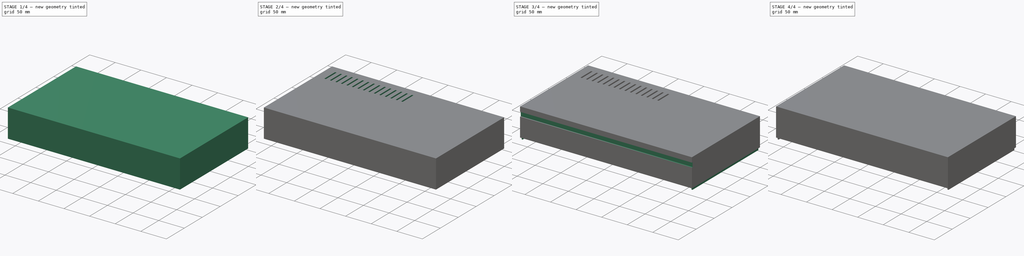
[diagram: build sequence overview — one tinted view per stage of 4, left to right]
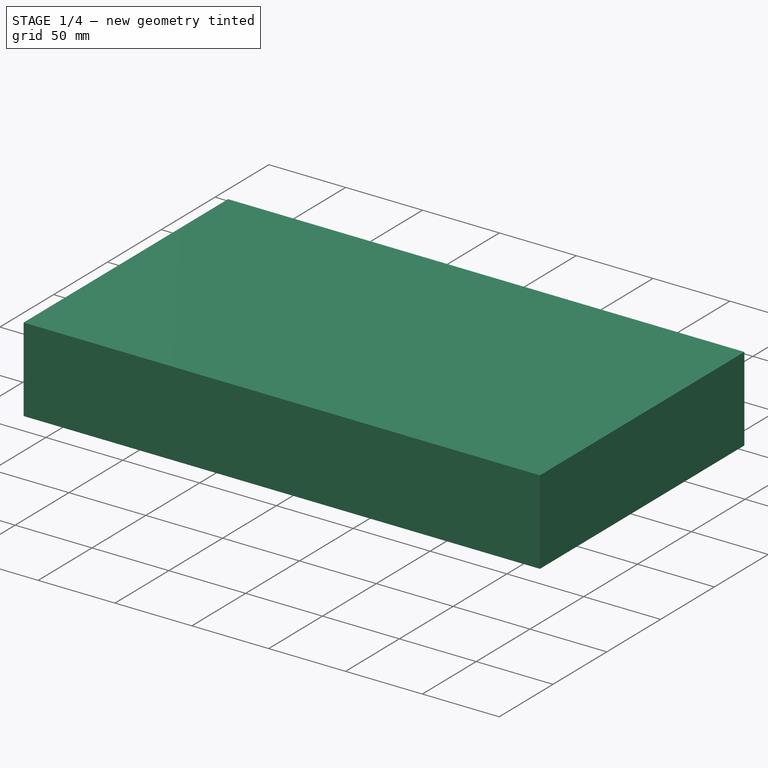
[diagram: stage 1 of 4 — iso view after this stage's code; geometry added in this stage tinted green]
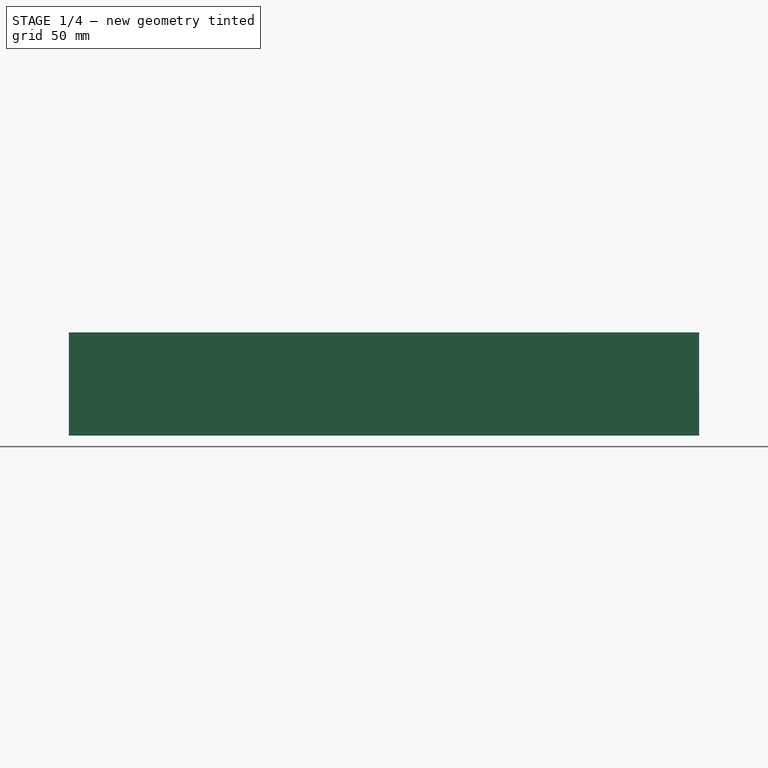
[diagram: stage 1 of 4 — front view after this stage's code; geometry added in this stage tinted green]
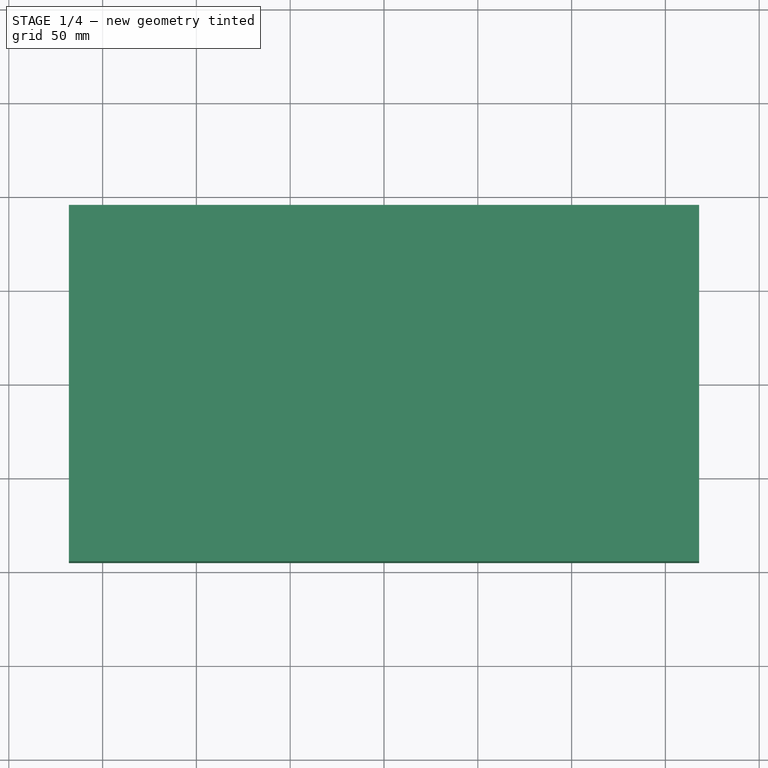
[diagram: stage 1 of 4 — top view after this stage's code; geometry added in this stage tinted green]
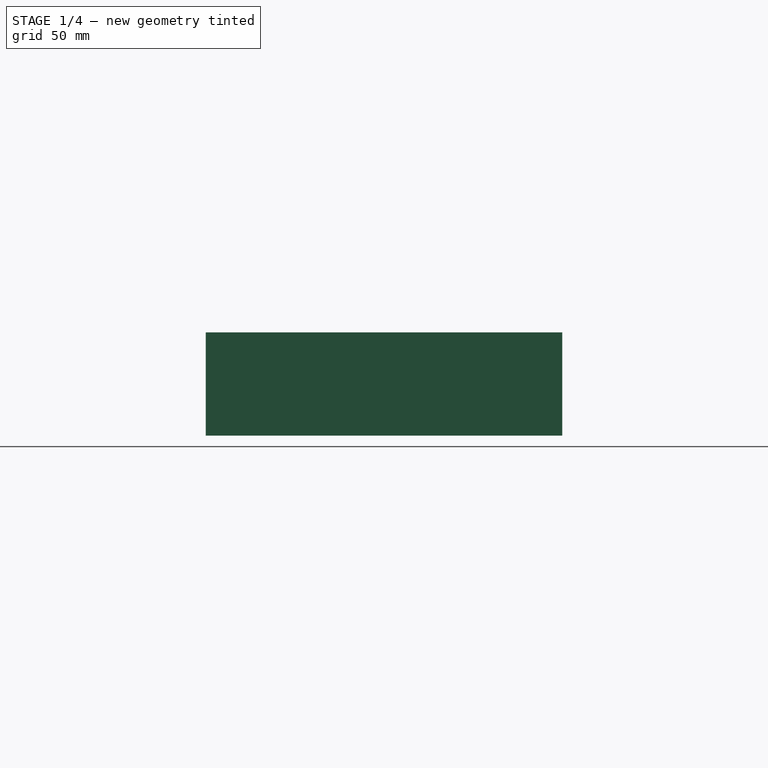
[diagram: stage 1 of 4 — right view after this stage's code; geometry added in this stage tinted green]
FCSTD DOCUMENT  (FreeCAD 0.21R33771 (Git))
Label: CaseTop
License: All rights reserved
LicenseURL: https://en.wikipedia.org/wiki/All_rights_reserved
objects: Sketcher::SketchObject×6, PartDesign::Pocket×3, PartDesign::Pad×2, PartDesign::Thickness×2, PartDesign::LinearPattern×1, PartDesign::Mirrored×1, PartDesign::Body×1
note: 23 computed .brp shape members not serialized (recipe doc carries the construction recipe); baked Part::Feature solids carry a one-line shape summary decoded from their .brp

FEATURE [Sketcher::SketchObject] Sketch
  FullyConstrained = true
  MapMode = 5
  Support = -> [XY_Plane]
  sketch-geometry (5):
    g0: LineSegment StartX=-168 StartY=95 StartZ=0 EndX=-168 EndY=-95 EndZ=0
    g1: LineSegment StartX=-168 StartY=-95 StartZ=0 EndX=168 EndY=-95 EndZ=0
    g2: LineSegment StartX=168 StartY=-95 StartZ=0 EndX=168 EndY=95 EndZ=0
    g3: LineSegment StartX=168 StartY=95 StartZ=0 EndX=-168 EndY=95 EndZ=0
    g4: GeomPoint X=0 Y=0 Z=0
  constraints (12):
    c: Coincident(g0,g1)
    c: Coincident(g1,g2)
    c: Coincident(g2,g3)
    c: Coincident(g3,g0)
    c: Horizontal(g1)
    c: Horizontal(g3)
    c: Vertical(g0)
    c: Vertical(g2)
    c: Symmetric(g1,g0,g4)
    c: Coincident(g4,g-1)
    c: DistanceX(g3,g3) = 336
    c: DistanceY(g0,g0) = 190
FEATURE [PartDesign::Pad] Pad
  Direction = (0,0,1)
  Length = 55
  Length2 = 10
  Profile = -> Sketch
  ReferenceAxis = -> Sketch [N_Axis]
  Refine = true
  Reversed = true
  Type = 0
FEATURE [PartDesign::Thickness] Thickness001
  Base = -> Pad [Face6]
  BaseFeature = -> Pad
  Intersection = false
  Join = 0
  Mode = 0
  Refine = true
  Reversed = true
  SupportTransform = false
  Value = 3
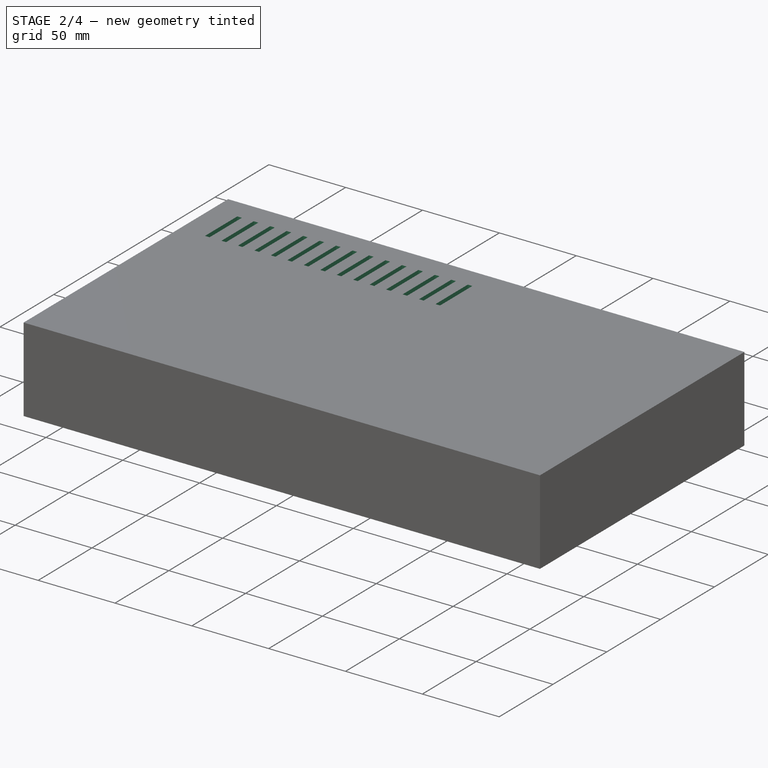
[diagram: stage 2 of 4 — iso view after this stage's code; geometry added in this stage tinted green]
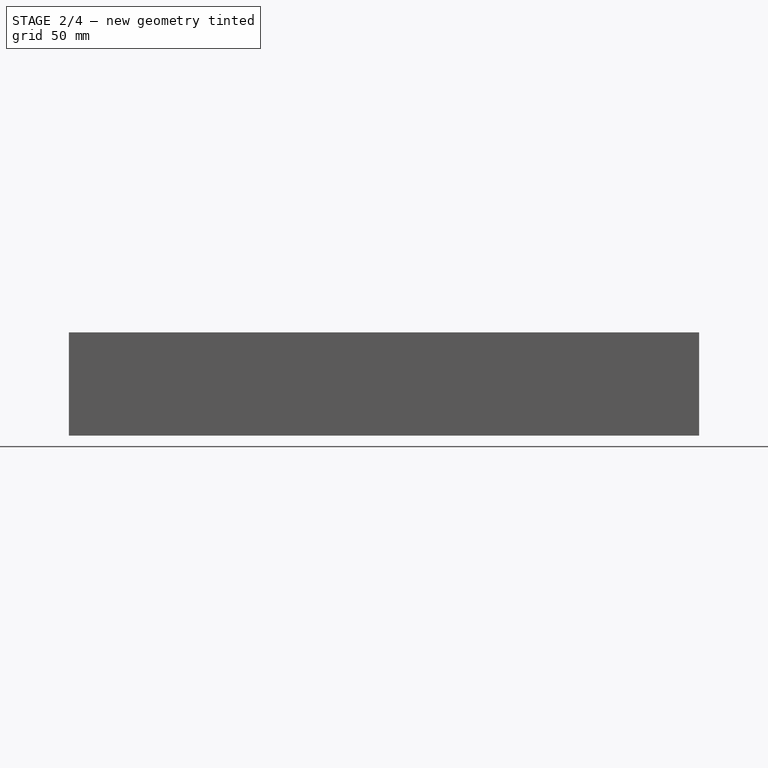
[diagram: stage 2 of 4 — front view after this stage's code; geometry added in this stage tinted green]
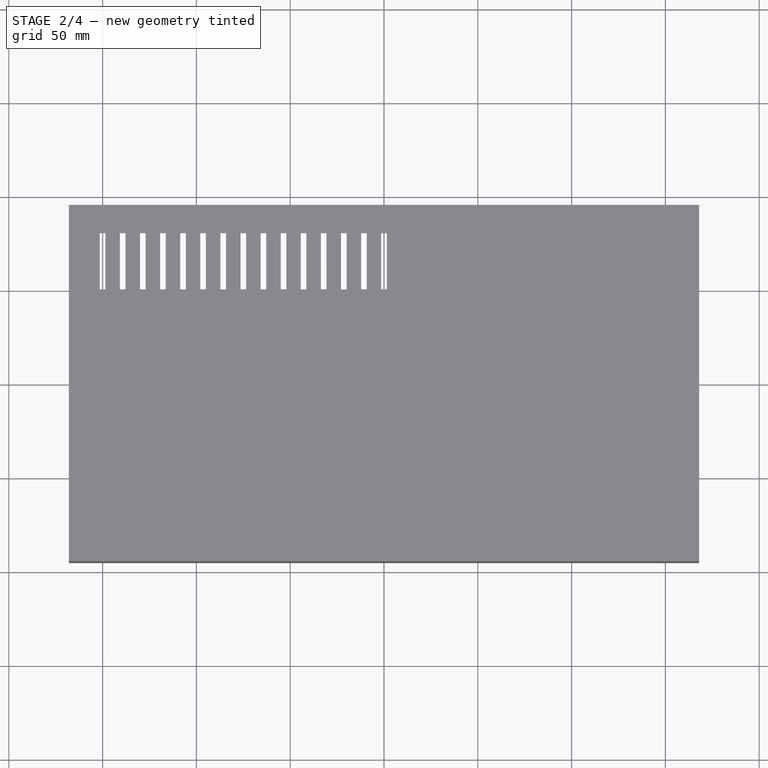
[diagram: stage 2 of 4 — top view after this stage's code; geometry added in this stage tinted green]
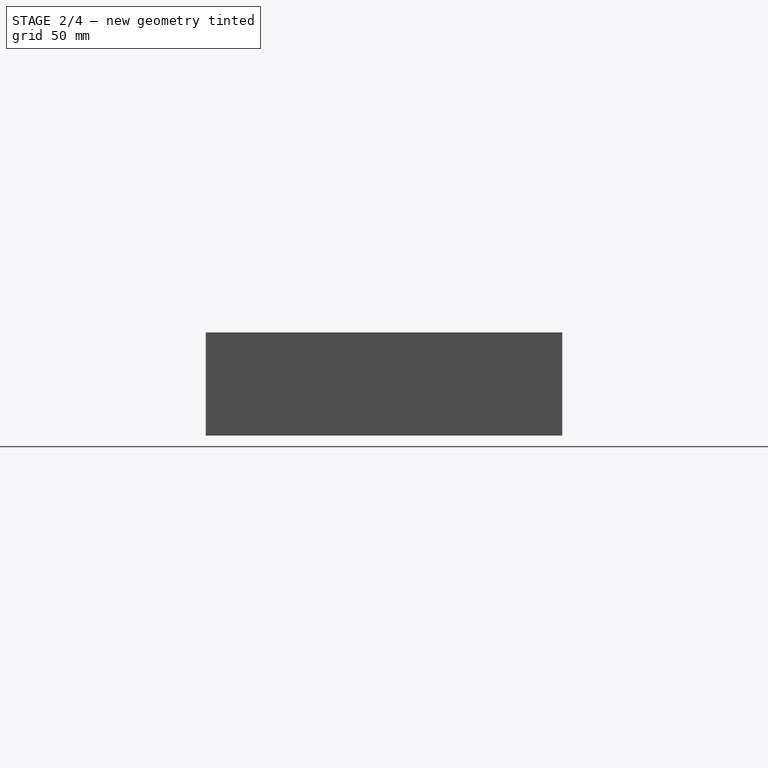
[diagram: stage 2 of 4 — right view after this stage's code; geometry added in this stage tinted green]
FEATURE [Sketcher::SketchObject] Sketch001
  FullyConstrained = true
  MapMode = 5
  Support = -> [Thickness001]
  sketch-geometry (4):
    g0: LineSegment StartX=-1.5 StartY=80 StartZ=0 EndX=1.5 EndY=80 EndZ=0
    g1: LineSegment StartX=1.5 StartY=80 StartZ=0 EndX=1.5 EndY=50 EndZ=0
    g2: LineSegment StartX=1.5 StartY=50 StartZ=0 EndX=-1.5 EndY=50 EndZ=0
    g3: LineSegment StartX=-1.5 StartY=50 StartZ=0 EndX=-1.5 EndY=80 EndZ=0
  constraints (11):
    c: Coincident(g0,g1)
    c: Coincident(g2,g3)
    c: Horizontal(g0)
    c: Vertical(g1)
    c: Vertical(g3)
    c: Symmetric(g2,g1,g-2)
    c: Coincident(g0,g3)
    c: DistanceY(g1,g1) = 30
    c: Coincident(g1,g2)
    c: DistanceX(g0,g0) = 3
    c: Block(g3)
FEATURE [PartDesign::Pocket] Pocket
  BaseFeature = -> Thickness001
  Direction = (0,0,-1)
  Length = 5
  Length2 = 5
  Profile = -> Sketch001
  ReferenceAxis = -> Sketch001 [N_Axis]
  Refine = true
  Type = 0
FEATURE [PartDesign::LinearPattern] LinearPattern
  BaseFeature = -> Pocket
  Direction = -> X_Axis
  Length = 150
  Occurrences = 15
  Originals = -> [Pocket]
  Refine = true
  Reversed = true
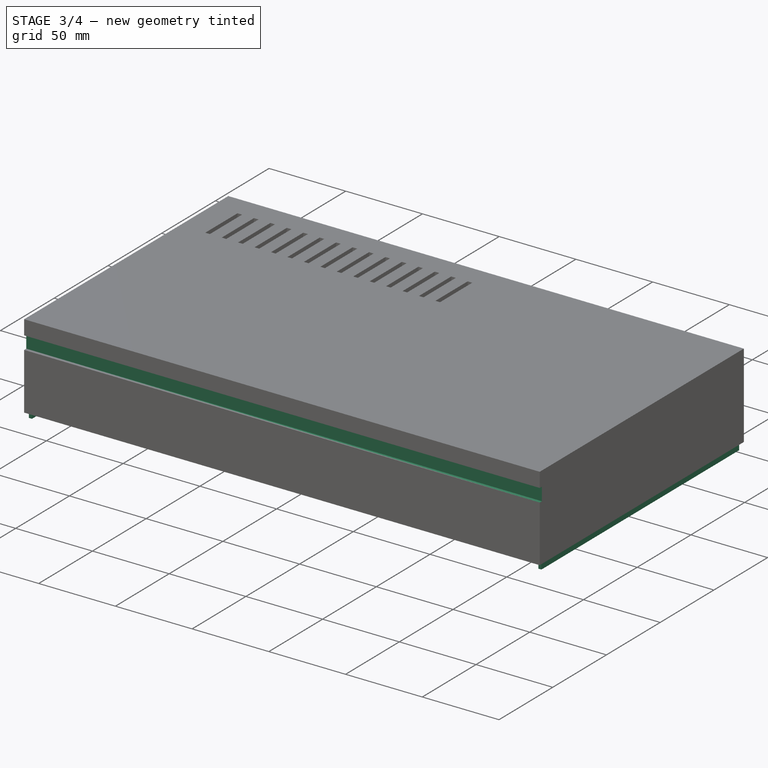
[diagram: stage 3 of 4 — iso view after this stage's code; geometry added in this stage tinted green]
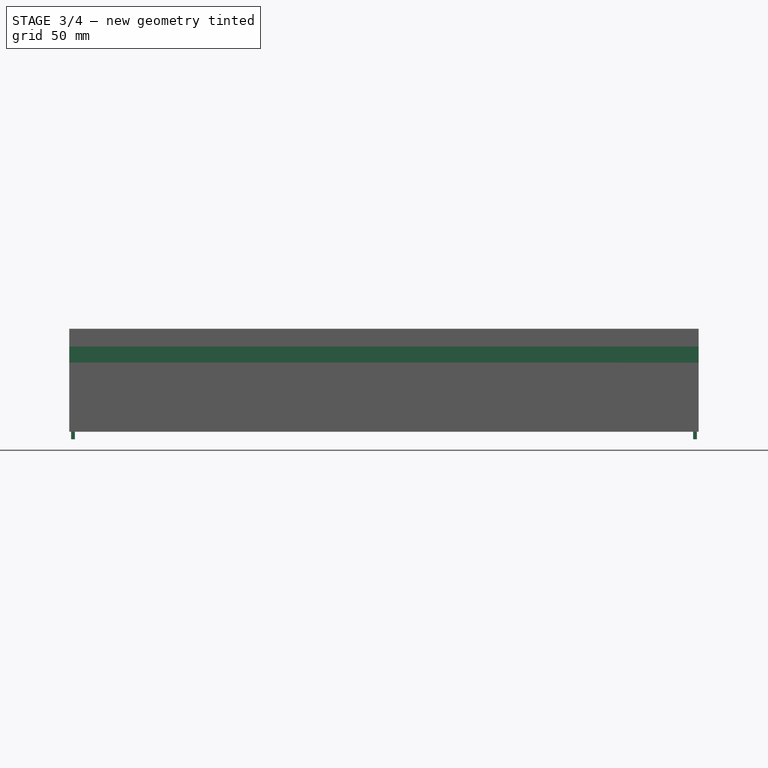
[diagram: stage 3 of 4 — front view after this stage's code; geometry added in this stage tinted green]
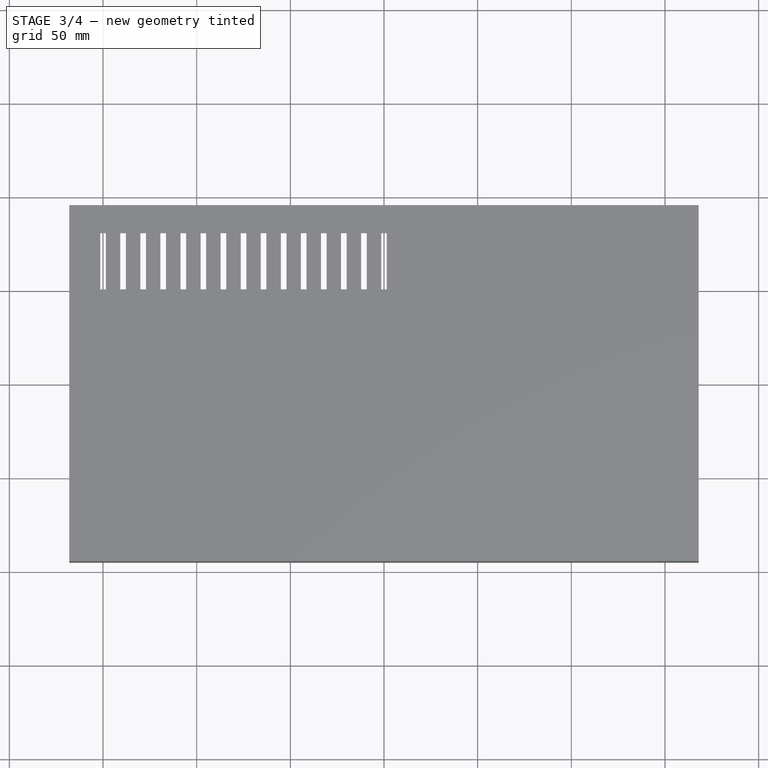
[diagram: stage 3 of 4 — top view after this stage's code; geometry added in this stage tinted green]
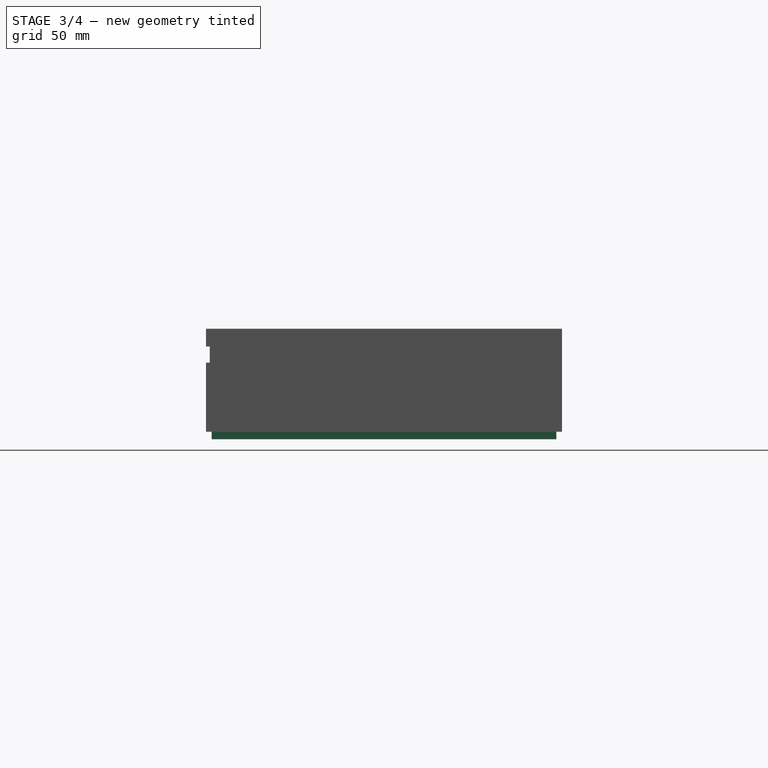
[diagram: stage 3 of 4 — right view after this stage's code; geometry added in this stage tinted green]
FEATURE [Sketcher::SketchObject] Sketch002
  ExternalGeometry = -> [LinearPattern]
  FullyConstrained = true
  MapMode = 5
  Placement = pos=(0,0,-55) rot=(1,0,0;3.14159rad)
  Support = -> [LinearPattern]
  sketch-geometry (4):
    g0: LineSegment StartX=165 StartY=92 StartZ=0 EndX=167 EndY=92 EndZ=0
    g1: LineSegment StartX=167 StartY=92 StartZ=0 EndX=167 EndY=-92 EndZ=0
    g2: LineSegment StartX=167 StartY=-92 StartZ=0 EndX=165 EndY=-92 EndZ=0
    g3: LineSegment StartX=165 StartY=-92 StartZ=0 EndX=165 EndY=92 EndZ=0
  constraints (10):
    c: Coincident(g0,g1)
    c: Coincident(g1,g2)
    c: Coincident(g2,g3)
    c: Coincident(g3,g0)
    c: Horizontal(g0)
    c: Horizontal(g2)
    c: Vertical(g1)
    c: Coincident(g0,g-3)
    c: Coincident(g2,g-3)
    c: DistanceX(g2,g2) = 2
FEATURE [PartDesign::Pad] Pad001
  BaseFeature = -> LinearPattern
  Direction = (0,0,-1)
  Length = 4
  Length2 = 10
  Profile = -> Sketch002
  ReferenceAxis = -> Sketch002 [N_Axis]
  Refine = true
  Type = 0
FEATURE [PartDesign::Mirrored] Mirrored
  BaseFeature = -> Pad001
  MirrorPlane = -> YZ_Plane
  Originals = -> [Pad001]
  Refine = true
FEATURE [Sketcher::SketchObject] Sketch004
  ExternalGeometry = -> [Mirrored]
  FullyConstrained = true
  MapMode = 5
  Placement = pos=(0,-95,0) rot=(1,0,0;1.5708rad)
  Support = -> [Mirrored]
  sketch-geometry (9):
    g0: LineSegment StartX=61.5 StartY=-5.4 StartZ=0 EndX=61.5 EndY=-30.8 EndZ=0
    g1: LineSegment StartX=61.5 StartY=-30.8 StartZ=0 EndX=162.5 EndY=-30.8 EndZ=0
    g2: LineSegment StartX=162.5 StartY=-30.8 StartZ=0 EndX=162.5 EndY=-5.4 EndZ=0
    g3: LineSegment StartX=162.5 StartY=-5.4 StartZ=0 EndX=61.5 EndY=-5.4 EndZ=0
    g4: GeomPoint X=112 Y=-18.1 Z=0
    g5: LineSegment StartX=48.5 StartY=-5.39998 StartZ=0 EndX=-52.5 EndY=-5.39998 EndZ=0
    g6: LineSegment StartX=-52.5 StartY=-5.39998 StartZ=0 EndX=-52.5 EndY=-30.8 EndZ=0
    g7: LineSegment StartX=-52.5 StartY=-30.8 StartZ=0 EndX=48.5 EndY=-30.8 EndZ=0
    g8: LineSegment StartX=48.5 StartY=-30.8 StartZ=0 EndX=48.5 EndY=-5.39998 EndZ=0
  constraints (26):
    c: Coincident(g0,g1)
    c: Coincident(g1,g2)
    c: Coincident(g2,g3)
    c: Coincident(g3,g0)
    c: Horizontal(g1)
    c: Horizontal(g3)
    c: Vertical(g0)
    c: Vertical(g2)
    c: Symmetric(g1,g0,g4)
    c: DistanceX(g4,g-3) = 56
    c: DistanceX(g3,g3) = 101
    c: DistanceY(g0,g0) = 25.4
    c: Block(g3)
    c: DistanceY(g4,g-3) = 18.1
    c: Coincident(g6,g7)
    c: Coincident(g7,g8)
    c: Coincident(g8,g5)
    c: Coincident(g5,g6)
    c: Horizontal(g7)
    c: Horizontal(g5)
    c: Vertical(g6)
    c: Vertical(g8)
    c: Equal(g3,g5) = 101
    c: Equal(g0,g6) = 25.4
    c: Block(g5)
    c: DistanceX(g7,g1) = 114
FEATURE [Sketcher::SketchObject] Sketch005
  ExternalGeometry = -> [Sketch004]
  FullyConstrained = true
  MapMode = 5
  Placement = pos=(0,-95,0) rot=(1,0,0;1.5708rad)
  Support = -> [Mirrored]
  sketch-geometry (17):
    g0: LineSegment StartX=66.7 StartY=-11.5 StartZ=0 EndX=66.7 EndY=-16.1 EndZ=0
    g1: LineSegment StartX=157.3 StartY=-16.1 StartZ=0 EndX=157.3 EndY=-11.5 EndZ=0
    g2: GeomPoint X=112 Y=-13.8 Z=0
    g3: LineSegment StartX=61.5 StartY=-30.8 StartZ=0 EndX=162.5 EndY=-5.4 EndZ=0
    g4: LineSegment StartX=162.5 StartY=-30.8 StartZ=0 EndX=112 EndY=-18.1 EndZ=0
    g5: LineSegment StartX=112 StartY=-18.1 StartZ=0 EndX=61.5 EndY=-5.4 EndZ=0
    g6: LineSegment StartX=112 StartY=-54.1686 StartZ=0 EndX=112 EndY=9.99973 EndZ=0
    g7: LineSegment StartX=92 StartY=-11.5 StartZ=0 EndX=66.7 EndY=-11.5 EndZ=0
    g8: LineSegment StartX=157.3 StartY=-11.5 StartZ=0 EndX=132 EndY=-11.5 EndZ=0
    g9: LineSegment StartX=132 StartY=-11.5 StartZ=0 EndX=132 EndY=-10 EndZ=0
    g10: LineSegment StartX=132 StartY=-10 StartZ=0 EndX=92 EndY=-10 EndZ=0
    g11: LineSegment StartX=92 StartY=-10 StartZ=0 EndX=92 EndY=-11.5 EndZ=0
    g12: LineSegment StartX=66.7 StartY=-16.1 StartZ=0 EndX=92 EndY=-16.1 EndZ=0
    g13: LineSegment StartX=92 StartY=-16.1 StartZ=0 EndX=92 EndY=-17 EndZ=0
    g14: LineSegment StartX=92 StartY=-17 StartZ=0 EndX=132 EndY=-17 EndZ=0
    g15: LineSegment StartX=132 StartY=-17 StartZ=0 EndX=132 EndY=-16.1 EndZ=0
    g16: LineSegment StartX=132 StartY=-16.1 StartZ=0 EndX=157.3 EndY=-16.1 EndZ=0
  constraints (41):
    c: Coincident(g0,g12)
    c: Coincident(g16,g1)
    c: Coincident(g1,g8)
    c: Coincident(g7,g0)
    c: Vertical(g0)
    c: Vertical(g1)
    c: Symmetric(g16,g0,g2)
    c: DistanceY(g1,g1) = 4.6
    c: DistanceX(g7,g8) = 90.6
    c: DistanceY(g-5,g2) = 17
    c: Coincident(g3,g-6)
    c: Coincident(g3,g-5)
    c: Coincident(g4,g-5)
    c: Coincident(g5,g-6)
    c: Coincident(g4,g5)
    c: Block(g4)
    c: Block(g3)
    c: Block(g6)
    c: Symmetric(g0,g1,g6)
    c: Coincident(g11,g7)
    c: Horizontal(g7)
    c: Coincident(g9,g10)
    c: Coincident(g8,g9)
    c: Horizontal(g8)
    c: Coincident(g10,g11)
    c: Symmetric(g10,g9,g6)
    c: Parallel(g9,g11)
    c: Parallel(g11,g6)
    c: DistanceX(g10,g10) = 40
    c: Coincident(g12,g13)
    c: Coincident(g13,g14)
    c: Coincident(g14,g15)
    c: Coincident(g15,g16)
    c: Parallel(g13,g6)
    c: Parallel(g15,g6)
    c: Equal(g14,g10)
    c: Symmetric(g13,g14,g6)
    c: Block(g16)
    c: Block(g12)
    c: Block(g10)
    c: Block(g14)
FEATURE [Sketcher::SketchObject] Sketch006
  ExternalGeometry = -> [Mirrored,Sketch005]
  FullyConstrained = true
  MapMode = 5
  Placement = pos=(0,-95,0) rot=(1,0,0;1.5708rad)
  Support = -> [Mirrored]
  sketch-geometry (4):
    g0: LineSegment StartX=-168 StartY=-18.1 StartZ=0 EndX=168 EndY=-18.1 EndZ=0
    g1: LineSegment StartX=-168 StartY=-9.5 StartZ=0 EndX=168 EndY=-9.5 EndZ=0
    g2: LineSegment StartX=168 StartY=-9.5 StartZ=0 EndX=168 EndY=-18.1 EndZ=0
    g3: LineSegment StartX=-168 StartY=-9.5 StartZ=0 EndX=-168 EndY=-18.1 EndZ=0
  constraints (12):
    c: Horizontal(g0)
    c: Horizontal(g1)
    c: PointOnObject(g0,g-6)
    c: PointOnObject(g1,g-6)
    c: PointOnObject(g0,g-3)
    c: PointOnObject(g1,g-3)
    c: Coincident(g2,g1)
    c: Coincident(g2,g0)
    c: Coincident(g3,g1)
    c: Coincident(g3,g0)
    c: DistanceY(g0,g-7) = 2
    c: DistanceY(g-7,g1) = 2
FEATURE [PartDesign::Pocket] Pocket001
  BaseFeature = -> Mirrored
  Direction = (0,1,-2e-16)
  Length = 2
  Length2 = 5
  Profile = -> Sketch006
  ReferenceAxis = -> Sketch006 [N_Axis]
  Refine = true
  Type = 0
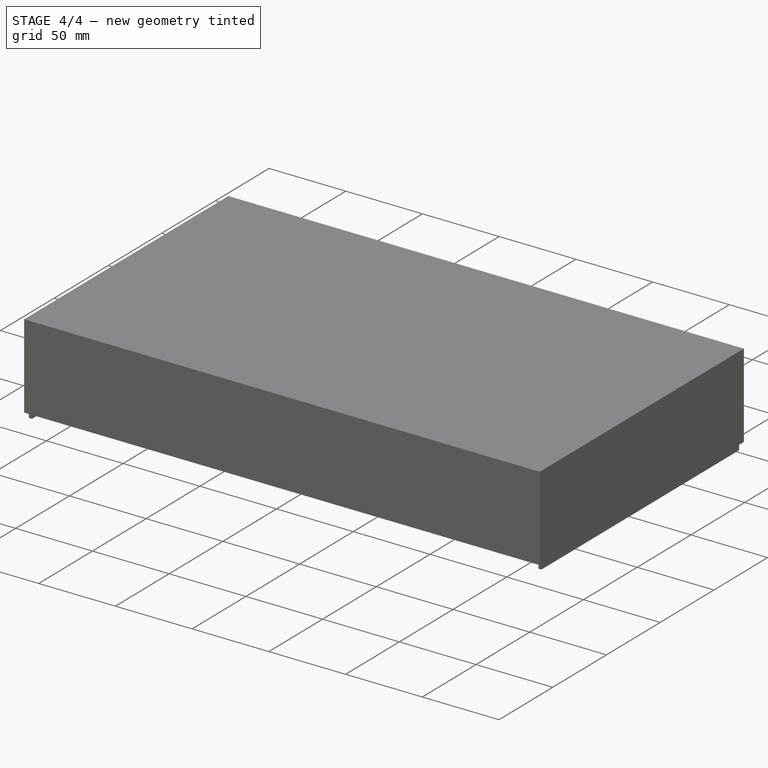
[diagram: stage 4 of 4 — iso view after this stage's code; geometry added in this stage tinted green]
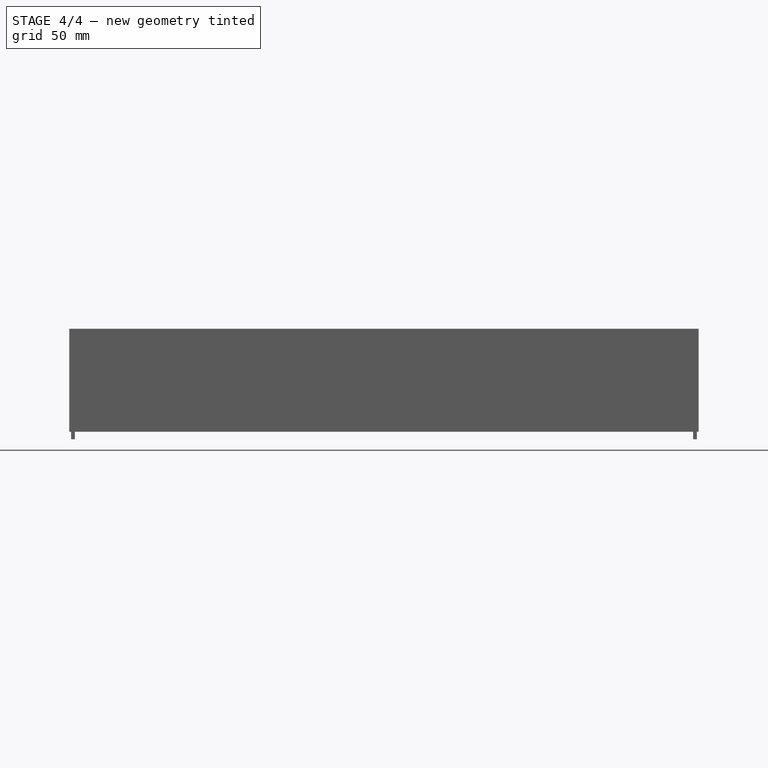
[diagram: stage 4 of 4 — front view after this stage's code; geometry added in this stage tinted green]
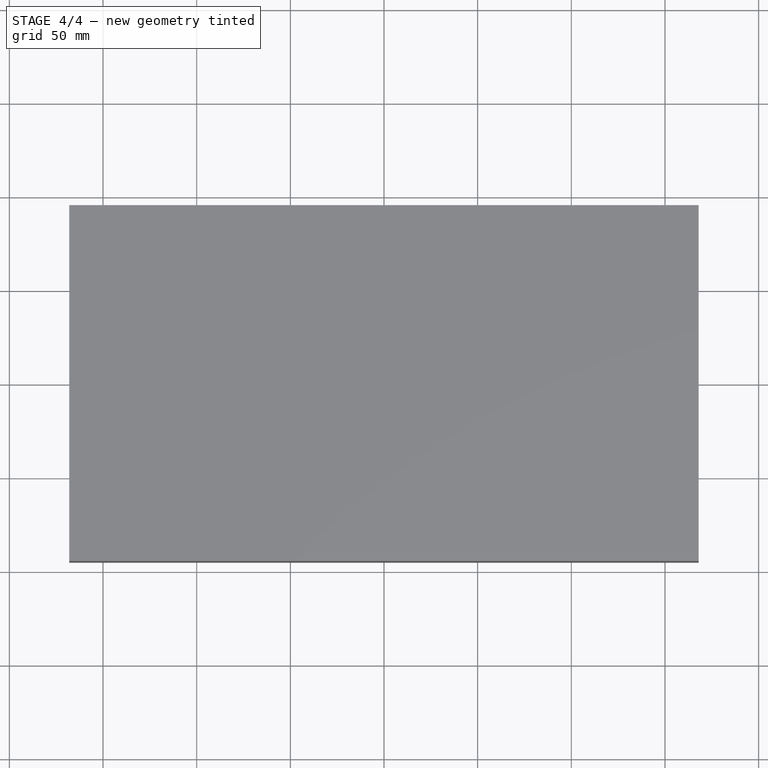
[diagram: stage 4 of 4 — top view after this stage's code; geometry added in this stage tinted green]
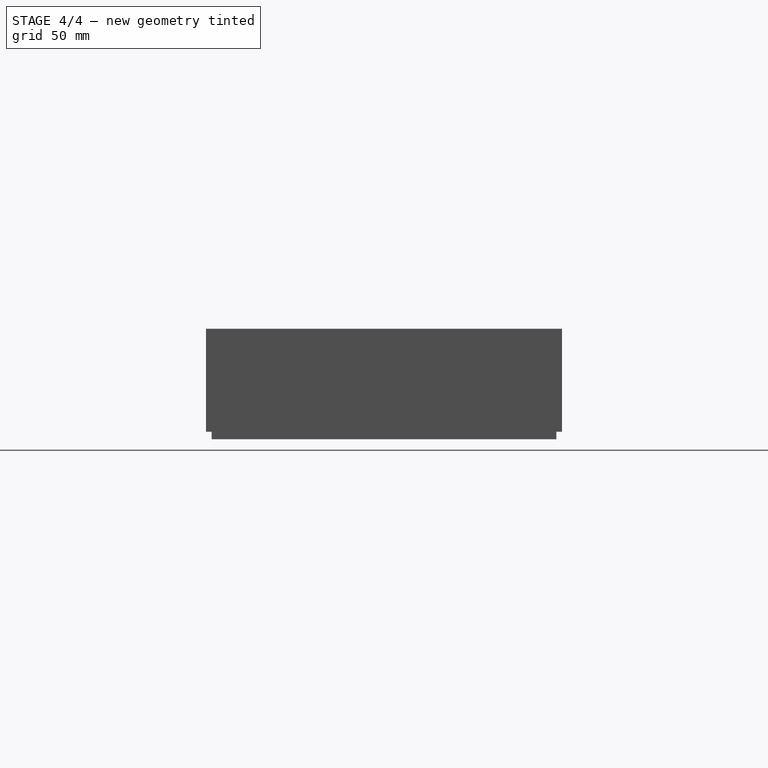
[diagram: stage 4 of 4 — right view after this stage's code; geometry added in this stage tinted green]
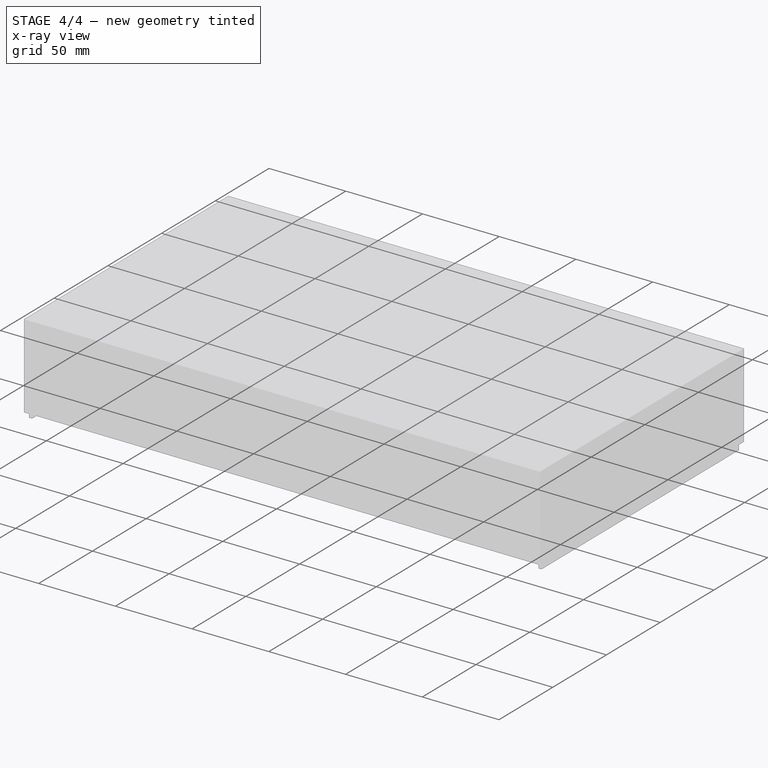
[diagram: stage 4 of 4 — x-ray composite at the iso view; earlier geometry ghosted, this stage's added geometry solid]
FEATURE [PartDesign::Thickness] Thickness
  Base = -> Pad
  BaseFeature = -> Pad
  Intersection = false
  Join = 0
  Mode = 0
  Refine = true
  SupportTransform = false
  Value = 1
FEATURE [PartDesign::Pocket] Pocket002
  BaseFeature = -> Pocket001
  Direction = (0,1,-2e-16)
  Length = 5
  Length2 = 5
  Profile = -> Sketch005
  ReferenceAxis = -> Sketch005 [N_Axis]
  Refine = true
  Type = 0
FEATURE [PartDesign::Body] Body
  Group = -> [Sketch,Pad,Thickness,Thickness001,Sketch001,Pocket,LinearPattern,Sketch002,Pad001,Mirrored,Sketch004,Sketch005,Sketch006,Pocket001,Pocket002]
  Origin = -> Origin
  Tip = -> Pocket002
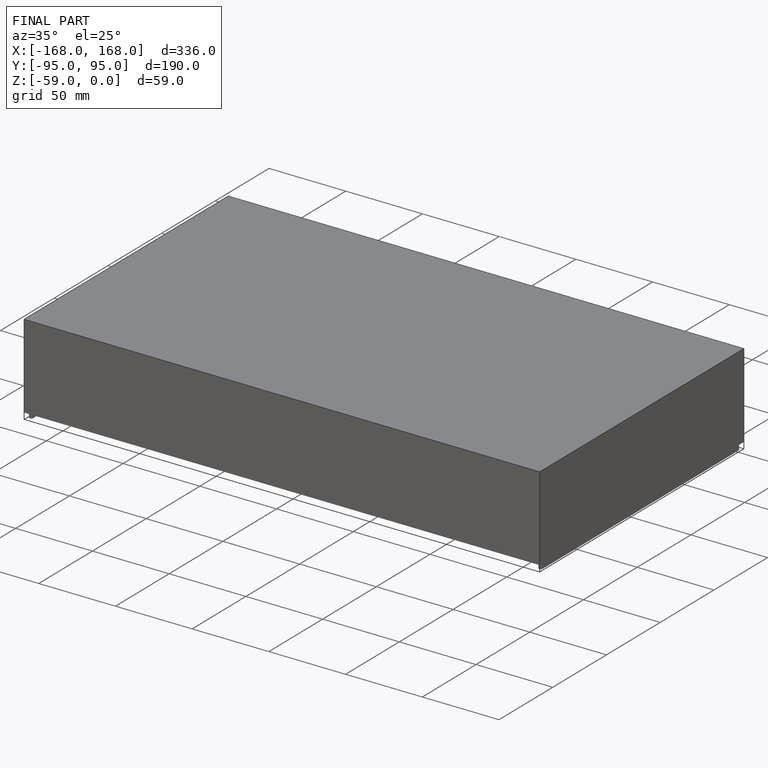
[diagram: finished part — iso view with bounding-box wireframe]
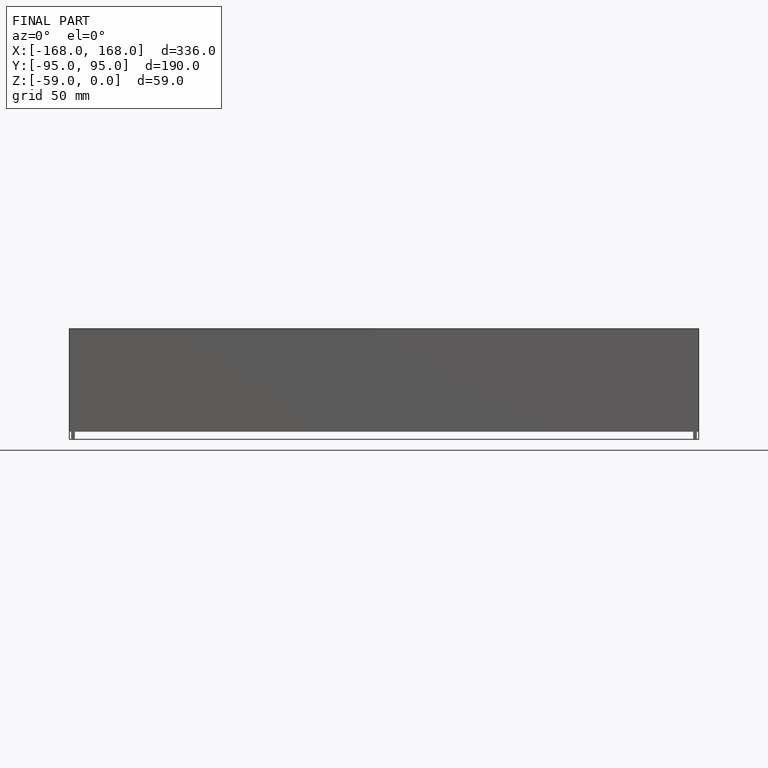
[diagram: finished part — front view with bounding-box wireframe]
